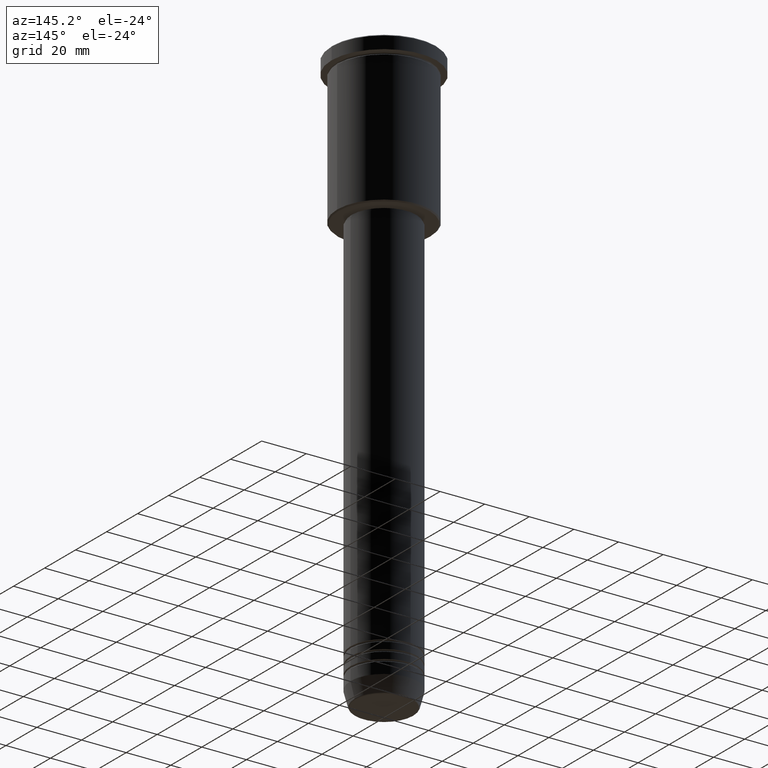
[diagram: clean part render]
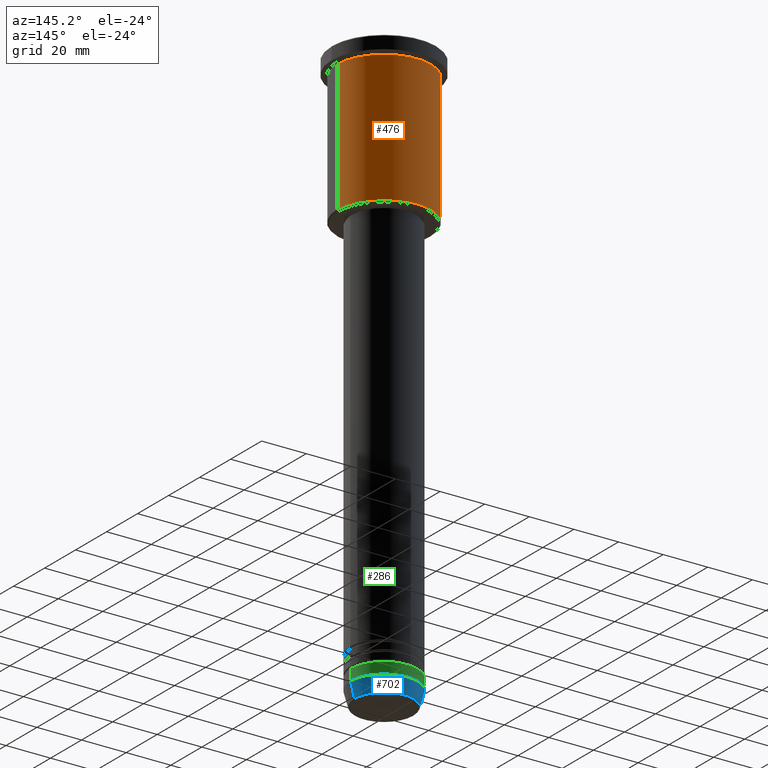
[diagram: same view with three faces highlighted in distinct colors, each labeled with its STEP entity id]
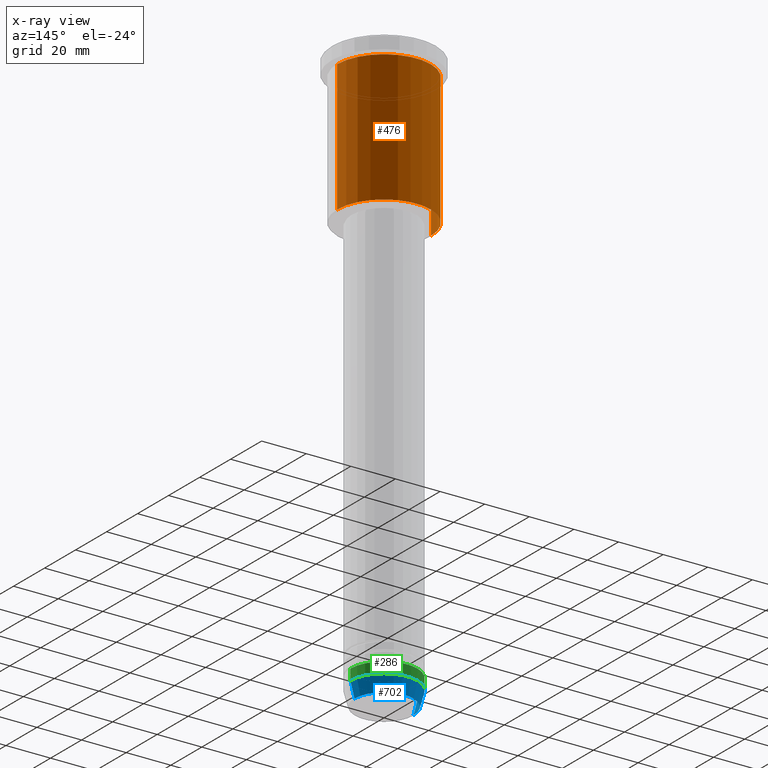
[diagram: x-ray of the same camera — body ghosted, the three highlighted faces saturated]
A machine part, auxiliary view with three faces highlighted in distinct colors.
The next image is the same camera in x-ray (body ghosted, the three faces saturated) — at least one of them is partly hidden behind the body in this view.
Their STEP definitions:

[orange] entity #476 — the highlighted cylindrical surface (partial cylindrical patch) has radius 21 mm, axis along (-0, -0, 1).
#69 = CARTESIAN_POINT ( 'NONE',  ( 21.00000000000000000, 0.000000000000000000, 0.000000000000000000 ) ) ;
#74 = AXIS2_PLACEMENT_3D ( 'NONE', #407, #768, #942 ) ;
#76 = VECTOR ( 'NONE', #282, 1000.000000000000000 ) ;
#109 = VERTEX_POINT ( 'NONE', #1132 ) ;
#115 = ORIENTED_EDGE ( 'NONE', *, *, #1167, .F. ) ;
#157 = FACE_OUTER_BOUND ( 'NONE', #911, .T. ) ;
#209 = VERTEX_POINT ( 'NONE', #455 ) ;
#230 = ORIENTED_EDGE ( 'NONE', *, *, #321, .F. ) ;
#240 = DIRECTION ( 'NONE',  ( -0.000000000000000000, -0.000000000000000000, 1.000000000000000000 ) ) ;
#282 = DIRECTION ( 'NONE',  ( -0.000000000000000000, -0.000000000000000000, 1.000000000000000000 ) ) ;
#321 = EDGE_CURVE ( 'NONE', #1127, #109, #1166, .T. ) ;
#330 = DIRECTION ( 'NONE',  ( -1.000000000000000000, 0.000000000000000000, 0.000000000000000000 ) ) ;
#344 = LINE ( 'NONE', #69, #387 ) ;
#387 = VECTOR ( 'NONE', #781, 1000.000000000000000 ) ;
#407 = CARTESIAN_POINT ( 'NONE',  ( 0.000000000000000000, 0.000000000000000000, -6.999999999999993783 ) ) ;
#447 = CARTESIAN_POINT ( 'NONE',  ( 21.00000000000000000, 0.000000000000000000, -6.999999999999993783 ) ) ;
#455 = CARTESIAN_POINT ( 'NONE',  ( -21.00000000000000000, 2.571758278209441661E-15, -65.50000000000002842 ) ) ;
#458 = CARTESIAN_POINT ( 'NONE',  ( -21.00000000000000000, 2.571758278209441661E-15, 0.000000000000000000 ) ) ;
#476 = ADVANCED_FACE ( 'NONE', ( #157 ), #588, .T. ) ;
#494 = CARTESIAN_POINT ( 'NONE',  ( 21.00000000000000000, 0.000000000000000000, -65.50000000000002842 ) ) ;
#588 = CYLINDRICAL_SURFACE ( 'NONE', #1032, 21.00000000000000000 ) ;
#618 = CARTESIAN_POINT ( 'NONE',  ( 0.000000000000000000, 0.000000000000000000, -65.50000000000002842 ) ) ;
#645 = LINE ( 'NONE', #458, #76 ) ;
#655 = EDGE_CURVE ( 'NONE', #209, #109, #645, .T. ) ;
#768 = DIRECTION ( 'NONE',  ( -0.000000000000000000, -0.000000000000000000, 1.000000000000000000 ) ) ;
#777 = CARTESIAN_POINT ( 'NONE',  ( 0.000000000000000000, 0.000000000000000000, 0.000000000000000000 ) ) ;
#781 = DIRECTION ( 'NONE',  ( -0.000000000000000000, -0.000000000000000000, 1.000000000000000000 ) ) ;
#794 = VERTEX_POINT ( 'NONE', #494 ) ;
#862 = AXIS2_PLACEMENT_3D ( 'NONE', #618, #1147, #330 ) ;
#911 = EDGE_LOOP ( 'NONE', ( #953, #979, #230, #115 ) ) ;
#942 = DIRECTION ( 'NONE',  ( 1.000000000000000000, 0.000000000000000000, 0.000000000000000000 ) ) ;
#953 = ORIENTED_EDGE ( 'NONE', *, *, #969, .T. ) ;
#969 = EDGE_CURVE ( 'NONE', #794, #209, #1097, .T. ) ;
#979 = ORIENTED_EDGE ( 'NONE', *, *, #655, .T. ) ;
#1032 = AXIS2_PLACEMENT_3D ( 'NONE', #777, #240, #1045 ) ;
#1045 = DIRECTION ( 'NONE',  ( 1.000000000000000000, 0.000000000000000000, 0.000000000000000000 ) ) ;
#1097 = CIRCLE ( 'NONE', #862, 21.00000000000000000 ) ;
#1127 = VERTEX_POINT ( 'NONE', #447 ) ;
#1132 = CARTESIAN_POINT ( 'NONE',  ( -21.00000000000000000, 2.571758278209441661E-15, -6.999999999999993783 ) ) ;
#1147 = DIRECTION ( 'NONE',  ( -0.000000000000000000, -0.000000000000000000, 1.000000000000000000 ) ) ;
#1166 = CIRCLE ( 'NONE', #74, 21.00000000000000000 ) ;
#1167 = EDGE_CURVE ( 'NONE', #794, #1127, #344, .T. ) ;

[blue] entity #702 — the highlighted conical surface has half-angle 15 deg.
#11 = DIRECTION ( 'NONE',  ( -0.000000000000000000, -0.000000000000000000, 1.000000000000000000 ) ) ;
#41 = CARTESIAN_POINT ( 'NONE',  ( -15.00000000000000000, 1.836970198721029589E-15, -254.0000000000000000 ) ) ;
#57 = CIRCLE ( 'NONE', #1054, 15.00000000000000000 ) ;
#120 = CARTESIAN_POINT ( 'NONE',  ( 13.22365507213718772, 0.000000000000000000, -260.6294095225513274 ) ) ;
#130 = DIRECTION ( 'NONE',  ( -0.2588190451025213501, 3.169619151431772337E-17, 0.9659258262890680902 ) ) ;
#288 = CARTESIAN_POINT ( 'NONE',  ( 15.00000000000000000, 0.000000000000000000, -254.0000000000000000 ) ) ;
#324 = EDGE_CURVE ( 'NONE', #1126, #883, #474, .T. ) ;
#376 = DIRECTION ( 'NONE',  ( 1.000000000000000000, 0.000000000000000000, 0.000000000000000000 ) ) ;
#437 = CIRCLE ( 'NONE', #765, 13.22365507213718772 ) ;
#464 = CARTESIAN_POINT ( 'NONE',  ( 0.000000000000000000, 0.000000000000000000, -254.0000000000000000 ) ) ;
#466 = ORIENTED_EDGE ( 'NONE', *, *, #1075, .T. ) ;
#474 = LINE ( 'NONE', #579, #1052 ) ;
#503 = DIRECTION ( 'NONE',  ( 1.000000000000000000, 0.000000000000000000, 0.000000000000000000 ) ) ;
#521 = CARTESIAN_POINT ( 'NONE',  ( 15.00000000000000000, 0.000000000000000000, -254.0000000000000000 ) ) ;
#523 = EDGE_CURVE ( 'NONE', #640, #883, #57, .T. ) ;
#579 = CARTESIAN_POINT ( 'NONE',  ( -15.00000000000000000, 1.836970198721029589E-15, -254.0000000000000000 ) ) ;
#596 = VECTOR ( 'NONE', #695, 1000.000000000000000 ) ;
#640 = VERTEX_POINT ( 'NONE', #288 ) ;
#648 = ORIENTED_EDGE ( 'NONE', *, *, #1162, .F. ) ;
#695 = DIRECTION ( 'NONE',  ( 0.2588190451025213501, 0.000000000000000000, 0.9659258262890680902 ) ) ;
#702 = ADVANCED_FACE ( 'NONE', ( #917 ), #1034, .T. ) ;
#706 = EDGE_LOOP ( 'NONE', ( #466, #1044, #1051, #648 ) ) ;
#713 = CARTESIAN_POINT ( 'NONE',  ( -13.22365507213718772, 1.728200442216588386E-15, -260.6294095225513274 ) ) ;
#765 = AXIS2_PLACEMENT_3D ( 'NONE', #1022, #1028, #376 ) ;
#775 = CARTESIAN_POINT ( 'NONE',  ( 0.000000000000000000, 0.000000000000000000, -254.0000000000000000 ) ) ;
#790 = DIRECTION ( 'NONE',  ( -0.000000000000000000, -0.000000000000000000, 1.000000000000000000 ) ) ;
#813 = VERTEX_POINT ( 'NONE', #120 ) ;
#883 = VERTEX_POINT ( 'NONE', #41 ) ;
#913 = AXIS2_PLACEMENT_3D ( 'NONE', #464, #11, #992 ) ;
#917 = FACE_OUTER_BOUND ( 'NONE', #706, .T. ) ;
#992 = DIRECTION ( 'NONE',  ( 1.000000000000000000, 0.000000000000000000, 0.000000000000000000 ) ) ;
#1022 = CARTESIAN_POINT ( 'NONE',  ( 0.000000000000000000, 0.000000000000000000, -260.6294095225513274 ) ) ;
#1028 = DIRECTION ( 'NONE',  ( -0.000000000000000000, -0.000000000000000000, 1.000000000000000000 ) ) ;
#1034 = CONICAL_SURFACE ( 'NONE', #913, 15.00000000000000000, 0.2617993877991500740 ) ;
#1044 = ORIENTED_EDGE ( 'NONE', *, *, #324, .T. ) ;
#1051 = ORIENTED_EDGE ( 'NONE', *, *, #523, .F. ) ;
#1052 = VECTOR ( 'NONE', #130, 1000.000000000000000 ) ;
#1054 = AXIS2_PLACEMENT_3D ( 'NONE', #775, #790, #503 ) ;
#1057 = LINE ( 'NONE', #521, #596 ) ;
#1075 = EDGE_CURVE ( 'NONE', #813, #1126, #437, .T. ) ;
#1126 = VERTEX_POINT ( 'NONE', #713 ) ;
#1162 = EDGE_CURVE ( 'NONE', #813, #640, #1057, .T. ) ;

[green] entity #286 — the highlighted cylindrical surface (partial cylindrical patch) has radius 15 mm, axis along (-0, -0, 1).
#41 = CARTESIAN_POINT ( 'NONE',  ( -15.00000000000000000, 1.836970198721029589E-15, -254.0000000000000000 ) ) ;
#57 = CIRCLE ( 'NONE', #1054, 15.00000000000000000 ) ;
#75 = CARTESIAN_POINT ( 'NONE',  ( -15.00000000000000000, 1.836970198721029589E-15, 0.000000000000000000 ) ) ;
#86 = FACE_OUTER_BOUND ( 'NONE', #353, .T. ) ;
#93 = CIRCLE ( 'NONE', #235, 15.00000000000000000 ) ;
#100 = DIRECTION ( 'NONE',  ( -0.000000000000000000, -0.000000000000000000, 1.000000000000000000 ) ) ;
#135 = ORIENTED_EDGE ( 'NONE', *, *, #523, .T. ) ;
#138 = VECTOR ( 'NONE', #336, 1000.000000000000000 ) ;
#155 = AXIS2_PLACEMENT_3D ( 'NONE', #536, #279, #448 ) ;
#164 = CARTESIAN_POINT ( 'NONE',  ( 15.00000000000000000, 0.000000000000000000, 0.000000000000000000 ) ) ;
#181 = CYLINDRICAL_SURFACE ( 'NONE', #155, 15.00000000000000000 ) ;
#221 = DIRECTION ( 'NONE',  ( 1.000000000000000000, 0.000000000000000000, 0.000000000000000000 ) ) ;
#235 = AXIS2_PLACEMENT_3D ( 'NONE', #745, #1118, #221 ) ;
#253 = VECTOR ( 'NONE', #100, 1000.000000000000000 ) ;
#264 = EDGE_CURVE ( 'NONE', #883, #299, #462, .T. ) ;
#279 = DIRECTION ( 'NONE',  ( -0.000000000000000000, -0.000000000000000000, 1.000000000000000000 ) ) ;
#286 = ADVANCED_FACE ( 'NONE', ( #86 ), #181, .T. ) ;
#288 = CARTESIAN_POINT ( 'NONE',  ( 15.00000000000000000, 0.000000000000000000, -254.0000000000000000 ) ) ;
#299 = VERTEX_POINT ( 'NONE', #1100 ) ;
#336 = DIRECTION ( 'NONE',  ( -0.000000000000000000, -0.000000000000000000, 1.000000000000000000 ) ) ;
#340 = CARTESIAN_POINT ( 'NONE',  ( 15.00000000000000000, 0.000000000000000000, -249.0000000000000284 ) ) ;
#353 = EDGE_LOOP ( 'NONE', ( #135, #847, #361, #498 ) ) ;
#361 = ORIENTED_EDGE ( 'NONE', *, *, #386, .F. ) ;
#386 = EDGE_CURVE ( 'NONE', #857, #299, #93, .T. ) ;
#448 = DIRECTION ( 'NONE',  ( 1.000000000000000000, 0.000000000000000000, 0.000000000000000000 ) ) ;
#462 = LINE ( 'NONE', #75, #253 ) ;
#498 = ORIENTED_EDGE ( 'NONE', *, *, #1150, .F. ) ;
#503 = DIRECTION ( 'NONE',  ( 1.000000000000000000, 0.000000000000000000, 0.000000000000000000 ) ) ;
#523 = EDGE_CURVE ( 'NONE', #640, #883, #57, .T. ) ;
#536 = CARTESIAN_POINT ( 'NONE',  ( 0.000000000000000000, 0.000000000000000000, 0.000000000000000000 ) ) ;
#640 = VERTEX_POINT ( 'NONE', #288 ) ;
#687 = LINE ( 'NONE', #164, #138 ) ;
#745 = CARTESIAN_POINT ( 'NONE',  ( 0.000000000000000000, 0.000000000000000000, -249.0000000000000284 ) ) ;
#775 = CARTESIAN_POINT ( 'NONE',  ( 0.000000000000000000, 0.000000000000000000, -254.0000000000000000 ) ) ;
#790 = DIRECTION ( 'NONE',  ( -0.000000000000000000, -0.000000000000000000, 1.000000000000000000 ) ) ;
#847 = ORIENTED_EDGE ( 'NONE', *, *, #264, .T. ) ;
#857 = VERTEX_POINT ( 'NONE', #340 ) ;
#883 = VERTEX_POINT ( 'NONE', #41 ) ;
#1054 = AXIS2_PLACEMENT_3D ( 'NONE', #775, #790, #503 ) ;
#1100 = CARTESIAN_POINT ( 'NONE',  ( -15.00000000000000000, 1.836970198721029589E-15, -249.0000000000000284 ) ) ;
#1118 = DIRECTION ( 'NONE',  ( -0.000000000000000000, -0.000000000000000000, 1.000000000000000000 ) ) ;
#1150 = EDGE_CURVE ( 'NONE', #640, #857, #687, .T. ) ;